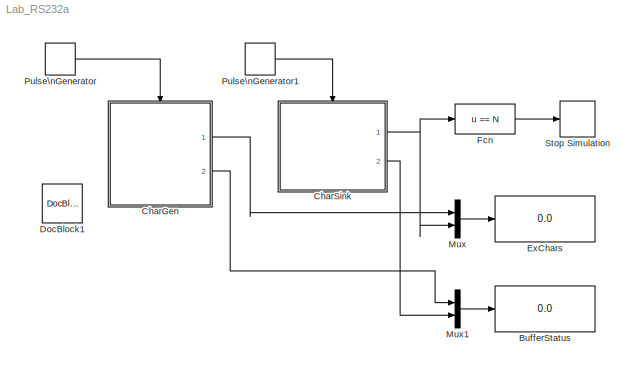
MODEL Lab_RS232a
KIND model
CONFIG PreLoadFcn = clear all;\nclose all;\nclc;\n\nTxs = 1;          % Gen clk (period)\nTrs = 1;           % Sink clk (period)\n\nN = 10;    % No of characters to exchange\n\n\n
CONFIG StartFcn = clc;\nclose all;\n\nTxBuffer = zeros(1,N);   % Tx characters tmp array\nRxBuffer = ones(1,N);   % Rx characters tmp array\n\nRS232_Start;\n\n
CONFIG StopFcn = RS232_End;\ndisp(' ');\n\nif size(TxBuffer) == size(RxBuffer)\n  if TxBuffer == RxBuffer\n    disp('OK');\n  else\n     disp('Error');\n     plot(TxBuffer-RxBuffer, 'o');\n  end\nelse\n     disp('Error: Incorrect No of characters');\nend\n\n
BLOCK [Display] BufferStatus
  Decimation = 1
  Lockdown = off
  Ports = [1]
  SID = 37
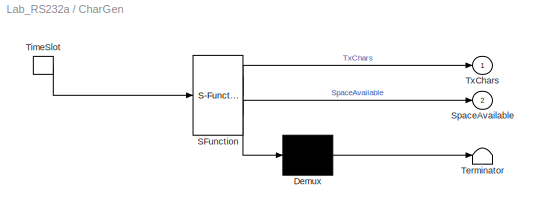
BLOCK [SubSystem] CharGen
  ErrorFcn = Stateflow.Translate.translate
  FunctionWithSeparateData = off
  MaskHideContents = off
  MinAlgLoopOccurrences = off
  Opaque = off
  PermitHierarchicalResolution = ExplicitOnly
  Ports = [0, 2, 0, 1]
  PropExecContextOutsideSubsystem = off
  RTWSystemCode = Auto
  RequestExecContextInheritance = off
  SFBlockType = Chart
  SID = 1
  TreatAsAtomicUnit = on
BLOCK [Demux] CharGen/ Demux 
  Outputs = 1
  Ports = [1, 1]
  SID = 1::52
BLOCK [S-Function] CharGen/ SFunction 
  EnableBusSupport = on
  FunctionName = sf_sfun
  PortCounts = [1 3]
  Ports = [1, 3]
  SID = 1::51
  Tag = Stateflow S-Function Lab_RS232a 1
BLOCK [Terminator] CharGen/ Terminator 
  SID = 1::54
BLOCK [Outport] CharGen/SpaceAvailable
  IconDisplay = Port number
  Port = 2
  SID = 1::46
BLOCK [TriggerPort] CharGen/TimeSlot
  Ports = [0, 1]
  SID = 1::29
  ShowOutputPort = on
  StatesWhenEnabling = held
BLOCK [Outport] CharGen/TxChars
  IconDisplay = Port number
  SID = 1::45
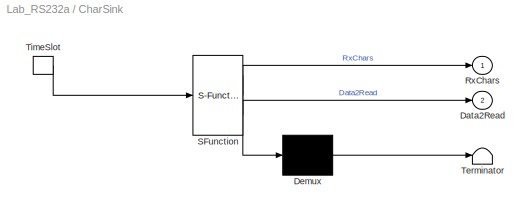
BLOCK [SubSystem] CharSink
  ErrorFcn = Stateflow.Translate.translate
  FunctionWithSeparateData = off
  MaskHideContents = off
  MinAlgLoopOccurrences = off
  Opaque = off
  PermitHierarchicalResolution = ExplicitOnly
  Ports = [0, 2, 0, 1]
  PropExecContextOutsideSubsystem = off
  RTWSystemCode = Auto
  RequestExecContextInheritance = off
  SFBlockType = Chart
  SID = 28
  TreatAsAtomicUnit = on
BLOCK [Demux] CharSink/ Demux 
  Outputs = 1
  Ports = [1, 1]
  SID = 28::53
BLOCK [S-Function] CharSink/ SFunction 
  EnableBusSupport = on
  FunctionName = sf_sfun
  PortCounts = [1 3]
  Ports = [1, 3]
  SID = 28::52
  Tag = Stateflow S-Function Lab_RS232a 2
BLOCK [Terminator] CharSink/ Terminator 
  SID = 28::55
BLOCK [Outport] CharSink/Data2Read
  IconDisplay = Port number
  Port = 2
  SID = 28::47
BLOCK [Outport] CharSink/RxChars
  IconDisplay = Port number
  SID = 28::46
BLOCK [TriggerPort] CharSink/TimeSlot
  Ports = [0, 1]
  SID = 28::29
  ShowOutputPort = on
  StatesWhenEnabling = held
BLOCK [Reference] DocBlock1  REF=simulink/Model-Wide\nUtilities/DocBlock
  DocumentType = Text
  Ports = []
  SID = 15
  SourceBlock = simulink/Model-Wide\nUtilities/DocBlock
  SourceType = DocBlock
  UserData = DataTag0
  UserDataPersistent = on
BLOCK [Display] ExChars
  Decimation = 1
  Lockdown = off
  Ports = [1]
  SID = 34
BLOCK [Fcn] Fcn
  Expr = u == N
  SID = 36
BLOCK [Mux] Mux
  DisplayOption = bar
  Inputs = 2
  Ports = [2, 1]
  SID = 35
BLOCK [Mux] Mux1
  DisplayOption = bar
  Inputs = 2
  Ports = [2, 1]
  SID = 38
BLOCK [DiscretePulseGenerator] Pulse\nGenerator
  Period = Txs
  PhaseDelay = Txs/2
  Ports = [0, 1]
  PulseType = Time based
  PulseWidth = 50
  SID = 4
BLOCK [DiscretePulseGenerator] Pulse\nGenerator1
  Period = Trs
  PhaseDelay = Trs/2
  Ports = [0, 1]
  PulseType = Time based
  PulseWidth = 50
  SID = 29
BLOCK [Stop] Stop Simulation
  SID = 30
LINE CharGen/ Demux :1 -> CharGen/ Terminator :1
LINE CharGen/ SFunction :1 -> CharGen/ Demux :1
LINE CharGen/ SFunction :2 -> CharGen/TxChars:1
LINE CharGen/ SFunction :3 -> CharGen/SpaceAvailable:1
LINE CharGen/TimeSlot:1 -> CharGen/ SFunction :1
LINE CharGen:1 -> Mux:1
LINE CharGen:2 -> Mux1:1
LINE CharSink/ Demux :1 -> CharSink/ Terminator :1
LINE CharSink/ SFunction :1 -> CharSink/ Demux :1
LINE CharSink/ SFunction :2 -> CharSink/RxChars:1
LINE CharSink/ SFunction :3 -> CharSink/Data2Read:1
LINE CharSink/TimeSlot:1 -> CharSink/ SFunction :1
NET CharSink:1 -> Fcn:1, Mux:2
LINE CharSink:2 -> Mux1:2
LINE Fcn:1 -> Stop Simulation:1
LINE Mux1:1 -> BufferStatus:1
LINE Mux:1 -> ExChars:1
LINE Pulse\nGenerator1:1 -> CharSink:trigger
LINE Pulse\nGenerator:1 -> CharGen:trigger
note: NET lines group one-source signal fan-out (src -> all destinations, sorted); 1:1 wires keep LINE
CHART CharGen states=3 transitions=4
  STATE_LABEL "GenState\\nen: lv++;\\n      Val = ml.uint8(ml.rand(1)*255);\\n      ml.TxBuffer[lv] = Val;\\n      ml.d2o_s1 = Val;\\n      ml('DOut_1');\\n      TxChars = lv;\\n       ml('B2O_1');\\n      SpaceAvailable = 1-ml.b2o_s1;\\ndu: ml('B2O_1');\\n      SpaceAvailable = 1-ml.b2o_s1;"
  STATE_LABEL "IniState\\nen: lv = 0;\\n      ml('B2O_1');\\n      SpaceAvailable = 1-ml.b2o_s1;\\ndu: ml('B2O_1');\\n      SpaceAvailable = 1-ml.b2o_s1;"
  STATE_LABEL 'NoAct'
CHART CharSink states=2 transitions=3
  STATE_LABEL "SinkState\\nen: ml('DIn_2');\\n      Val = ml.d2r_s2;\\n      lv++;\\n      ml.RxBuffer[lv] = Val;\\n      RxChars = lv;\\n      ml('B2R_2');\\n      Data2Read = ml.b2r_s2;\\ndu: ml('B2R_2');\\n      Data2Read = ml.b2r_s2;"
  STATE_LABEL "IniState\\nen: lv = 0;\\n      ml('B2R_2');\\n      Data2Read = ml.b2r_s2;\\ndu: ml('B2R_2');\\n      Data2Read = ml.b2r_s2;"
